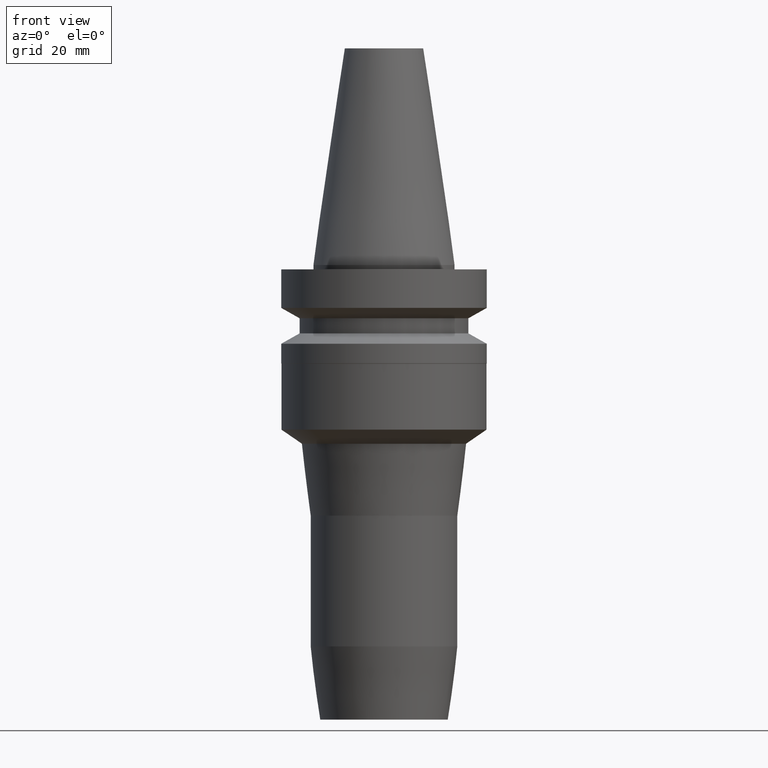
[diagram: clean part render]
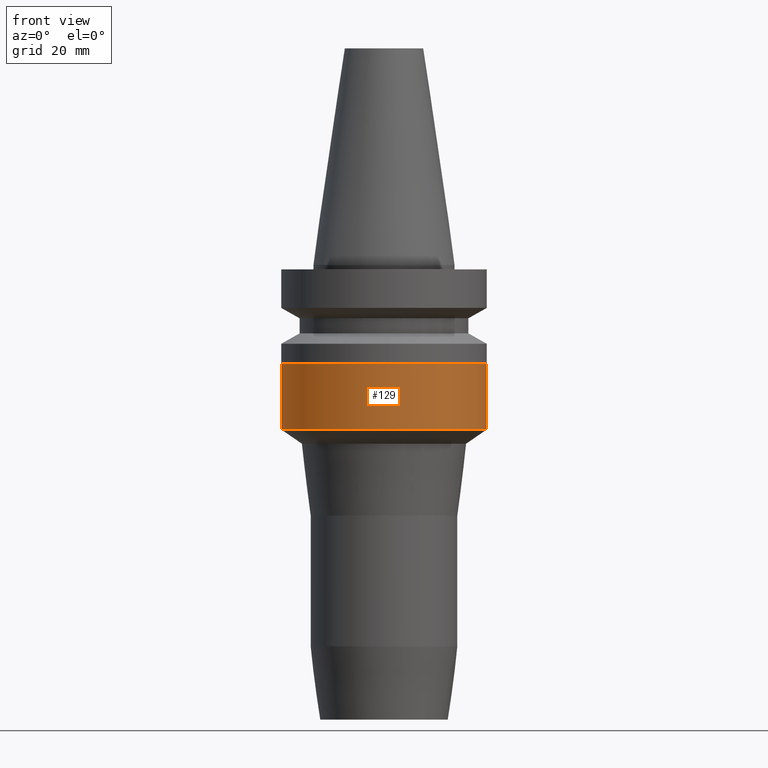
[diagram: same view with one face highlighted and labeled with its STEP entity id]
A machine part, front view. The second image highlights one B-rep face of the part: STEP entity #129.
In plain terms, the highlighted cylindrical surface (bore or boss wall) has radius 22.95 mm, axis along (0, 0, -1).
Its self-contained STEP definition (entity closure, byte-faithful):
#92=EDGE_CURVE('Unnamed[1]',#209,#209,#210,.T.);
#116=EDGE_CURVE('Unnamed[1]',#245,#245,#246,.T.);
#129=ADVANCED_FACE('Unnamed[1]',(#265,#266),#267,.T.);
#209=VERTEX_POINT('',#357);
#210=CIRCLE('',#358,22.95);
#245=VERTEX_POINT('',#401);
#246=CIRCLE('',#402,22.95);
#265=FACE_BOUND('',#426,.T.);
#266=FACE_BOUND('',#427,.T.);
#267=CYLINDRICAL_SURFACE('',#428,22.95);
#357=CARTESIAN_POINT('',(2.25335011043121E-015,22.95,-36.8000000000013));
#358=AXIS2_PLACEMENT_3D('',#504,#505,#506);
#401=CARTESIAN_POINT('',(1.35017309606003E-015,22.95,-22.0500000000013));
#402=AXIS2_PLACEMENT_3D('',#543,#544,#545);
#426=EDGE_LOOP('',(#565));
#427=EDGE_LOOP('',(#566));
#428=AXIS2_PLACEMENT_3D('',#567,#568,#569);
#504=CARTESIAN_POINT('',(2.25335011043121E-015,4.50670022086242E-015,-36.8000000000013));
#505=DIRECTION('',(6.12323399573677E-017,1.22464679914735E-016,-1.0));
#506=DIRECTION('',(-1.23259516440783E-032,1.0,1.22464679914735E-016));
#543=CARTESIAN_POINT('',(1.35017309606003E-015,2.70034619212007E-015,-22.0500000000013));
#544=DIRECTION('',(6.12323399573677E-017,1.22464679914735E-016,-1.0));
#545=DIRECTION('',(-1.23259516440783E-032,1.0,1.22464679914735E-016));
#565=ORIENTED_EDGE('',*,*,#92,.F.);
#566=ORIENTED_EDGE('',*,*,#116,.T.);
#567=CARTESIAN_POINT('',(1.80176160324562E-015,3.60352320649124E-015,-29.4250000000013));
#568=DIRECTION('',(6.12323399573677E-017,1.22464679914735E-016,-1.0));
#569=DIRECTION('',(-1.23259516440783E-032,1.0,1.22464679914735E-016));